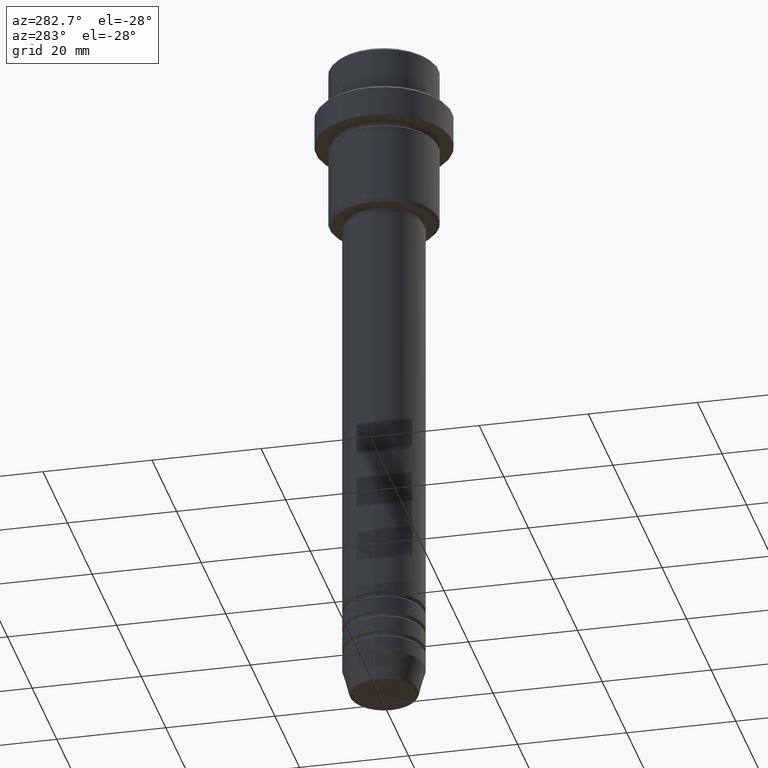
[diagram: clean part render]
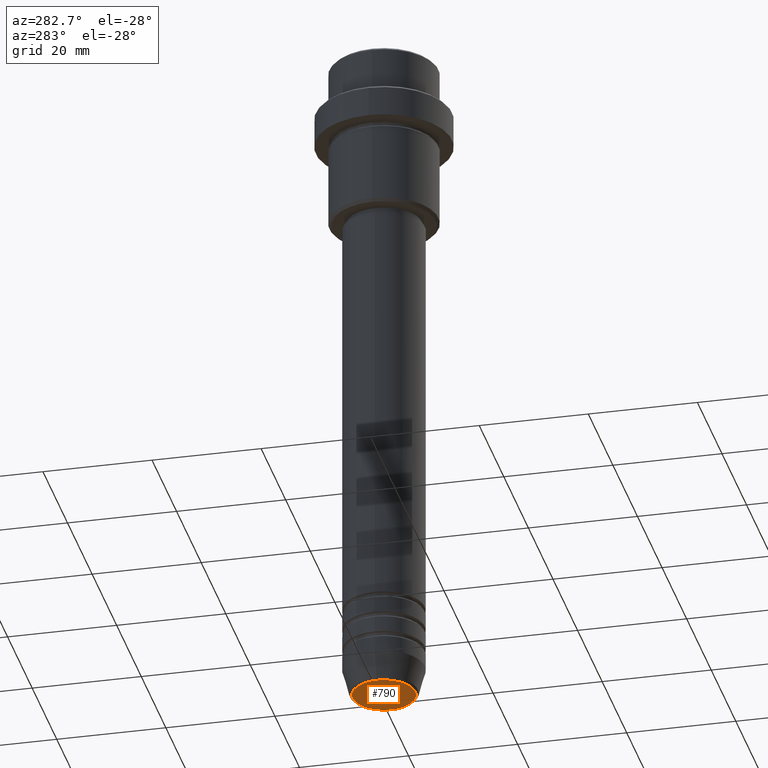
[diagram: same view with one face highlighted and labeled with its STEP entity id]
A machine part, auxiliary view. The second image highlights one B-rep face of the part: STEP entity #790.
In plain terms, the highlighted planar face has unit normal (0, -0, 1).
Its self-contained STEP definition (entity closure, byte-faithful):
#45 = AXIS2_PLACEMENT_3D ( 'NONE', #375, #833, #1371 ) ;
#68 = PLANE ( 'NONE',  #1363 ) ;
#151 = AXIS2_PLACEMENT_3D ( 'NONE', #754, #888, #1285 ) ;
#299 = DIRECTION ( 'NONE',  ( 0.000000000000000000, -0.000000000000000000, 1.000000000000000000 ) ) ;
#349 = ORIENTED_EDGE ( 'NONE', *, *, #1337, .T. ) ;
#375 = CARTESIAN_POINT ( 'NONE',  ( 0.000000000000000000, 0.000000000000000000, -126.0000000000000000 ) ) ;
#516 = DIRECTION ( 'NONE',  ( 1.000000000000000000, 0.000000000000000000, 0.000000000000000000 ) ) ;
#536 = VERTEX_POINT ( 'NONE', #695 ) ;
#695 = CARTESIAN_POINT ( 'NONE',  ( -5.776590543854901227, 7.370012612361442642E-16, -126.0000000000000000 ) ) ;
#754 = CARTESIAN_POINT ( 'NONE',  ( 0.000000000000000000, 0.000000000000000000, -126.0000000000000000 ) ) ;
#790 = ADVANCED_FACE ( 'NONE', ( #1028 ), #68, .F. ) ;
#832 = ORIENTED_EDGE ( 'NONE', *, *, #911, .T. ) ;
#833 = DIRECTION ( 'NONE',  ( 0.000000000000000000, 0.000000000000000000, -1.000000000000000000 ) ) ;
#864 = CIRCLE ( 'NONE', #151, 5.776590543854901227 ) ;
#871 = CARTESIAN_POINT ( 'NONE',  ( 0.000000000000000000, 0.000000000000000000, -126.0000000000000000 ) ) ;
#888 = DIRECTION ( 'NONE',  ( 0.000000000000000000, 0.000000000000000000, -1.000000000000000000 ) ) ;
#911 = EDGE_CURVE ( 'NONE', #536, #1023, #864, .T. ) ;
#979 = CARTESIAN_POINT ( 'NONE',  ( 5.776590543854901227, 0.000000000000000000, -126.0000000000000000 ) ) ;
#1023 = VERTEX_POINT ( 'NONE', #979 ) ;
#1028 = FACE_OUTER_BOUND ( 'NONE', #1292, .T. ) ;
#1285 = DIRECTION ( 'NONE',  ( 1.000000000000000000, 0.000000000000000000, 0.000000000000000000 ) ) ;
#1292 = EDGE_LOOP ( 'NONE', ( #349, #832 ) ) ;
#1301 = CIRCLE ( 'NONE', #45, 5.776590543854901227 ) ;
#1337 = EDGE_CURVE ( 'NONE', #1023, #536, #1301, .T. ) ;
#1363 = AXIS2_PLACEMENT_3D ( 'NONE', #871, #299, #516 ) ;
#1371 = DIRECTION ( 'NONE',  ( 1.000000000000000000, 0.000000000000000000, 0.000000000000000000 ) ) ;